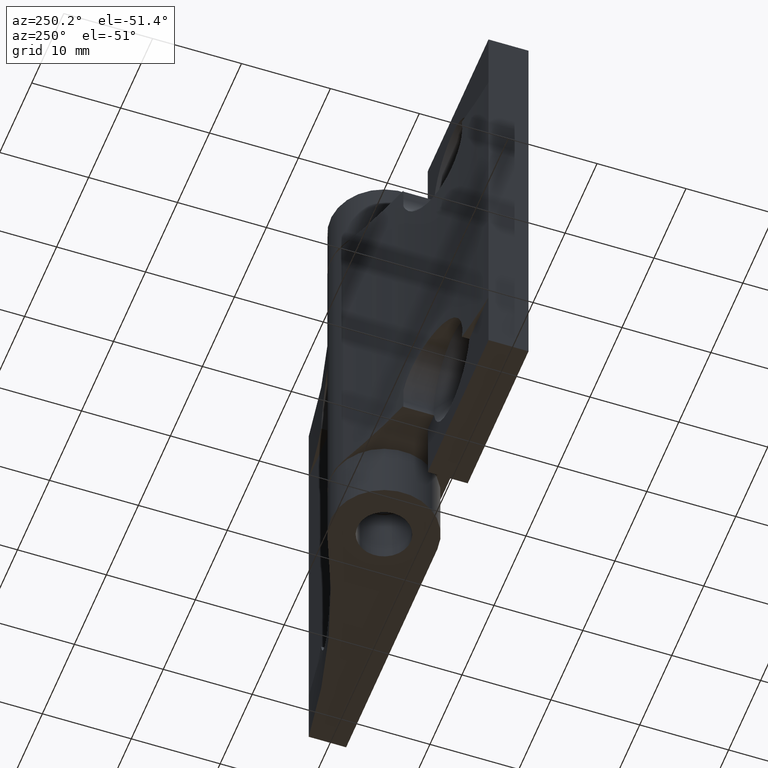
[diagram: clean part render]
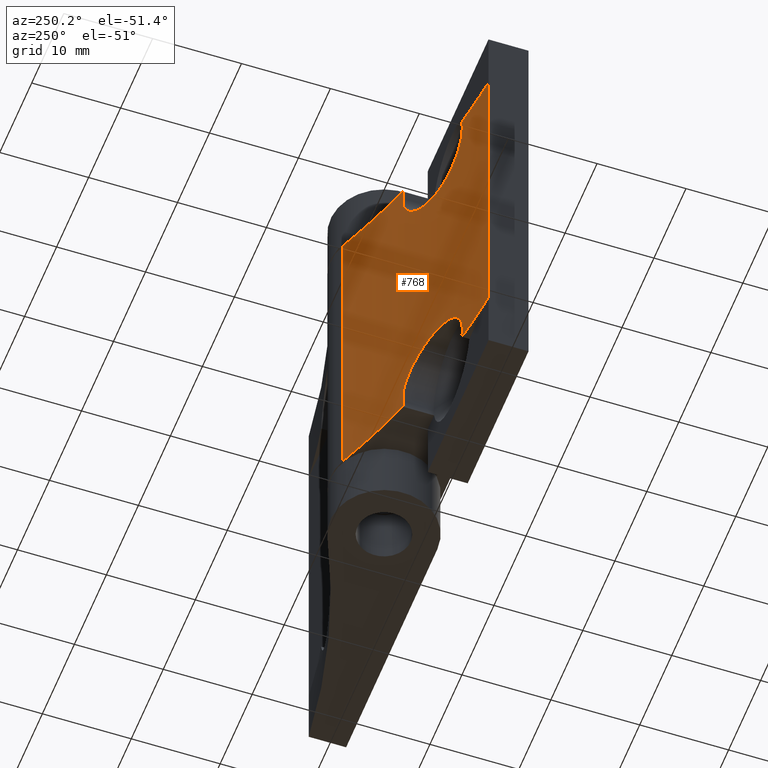
[diagram: same view with one face highlighted and labeled with its STEP entity id]
A machine part, auxiliary view. The second image highlights one B-rep face of the part: STEP entity #768.
In plain terms, the highlighted cylindrical surface (partial cylindrical patch) has radius 85.7362 mm, axis along (-0, -0, -1).
Its self-contained STEP definition (entity closure, byte-faithful):
#106=FACE_OUTER_BOUND('',#166,.T.);
#166=EDGE_LOOP('',(#657,#658,#659,#660,#661,#662,#663,#664,#665,#666));
#209=CIRCLE('',#839,85.7362212547211);
#210=CIRCLE('',#841,85.7362212547211);
#211=CIRCLE('',#843,85.7362212547211);
#216=CIRCLE('',#851,85.7362212547211);
#221=B_SPLINE_CURVE_WITH_KNOTS('',3,(#1244,#1245,#1246,#1247,#1248,#1249,
#1250,#1251,#1252,#1253,#1254,#1255,#1256,#1257,#1258,#1259,#1260,#1261,
#1262,#1263),.UNSPECIFIED.,.F.,.F.,(4,2,2,2,2,2,2,2,2,4),(-1.816147918135,
-1.71323056467301,-1.50267264141732,-1.29211471816164,-1.07591407226793,
-0.859713426374217,-0.640717282606993,-0.421721138839769,-0.210860569419885,
-0.152817432202066),.UNSPECIFIED.);
#222=B_SPLINE_CURVE_WITH_KNOTS('',3,(#1289,#1290,#1291,#1292,#1293,#1294,
#1295,#1296,#1297,#1298,#1299,#1300,#1301,#1302,#1303,#1304,#1305,#1306,
#1307,#1308),.UNSPECIFIED.,.F.,.F.,(4,2,2,2,2,2,2,2,2,4),(0.152817432202066,
0.210860569419885,0.421721138839769,0.640717282606993,0.859713426374216,
1.07591407226793,1.29211471816164,1.50267264141732,1.71323056467301,1.81614791796108),
 .UNSPECIFIED.);
#252=LINE('',#1274,#312);
#254=LINE('',#1281,#314);
#266=LINE('',#1350,#326);
#267=LINE('',#1351,#327);
#312=VECTOR('',#994,2.60740099139237);
#314=VECTOR('',#1000,2.60740099139237);
#326=VECTOR('',#1052,36.5);
#327=VECTOR('',#1053,36.5);
#379=VERTEX_POINT('',#1241);
#380=VERTEX_POINT('',#1243);
#383=VERTEX_POINT('',#1272);
#385=VERTEX_POINT('',#1277);
#386=VERTEX_POINT('',#1279);
#389=VERTEX_POINT('',#1287);
#391=VERTEX_POINT('',#1314);
#395=VERTEX_POINT('',#1326);
#396=VERTEX_POINT('',#1330);
#403=VERTEX_POINT('',#1348);
#463=EDGE_CURVE('',#380,#379,#221,.T.);
#469=EDGE_CURVE('',#379,#383,#252,.T.);
#472=EDGE_CURVE('',#385,#386,#254,.T.);
#476=EDGE_CURVE('',#386,#389,#222,.T.);
#484=EDGE_CURVE('',#391,#380,#209,.T.);
#486=EDGE_CURVE('',#389,#395,#210,.T.);
#487=EDGE_CURVE('',#396,#385,#211,.T.);
#495=EDGE_CURVE('',#383,#403,#216,.T.);
#496=EDGE_CURVE('',#403,#396,#266,.T.);
#497=EDGE_CURVE('',#391,#395,#267,.T.);
#657=ORIENTED_EDGE('',*,*,#469,.T.);
#658=ORIENTED_EDGE('',*,*,#495,.T.);
#659=ORIENTED_EDGE('',*,*,#496,.T.);
#660=ORIENTED_EDGE('',*,*,#487,.T.);
#661=ORIENTED_EDGE('',*,*,#472,.T.);
#662=ORIENTED_EDGE('',*,*,#476,.T.);
#663=ORIENTED_EDGE('',*,*,#486,.T.);
#664=ORIENTED_EDGE('',*,*,#497,.F.);
#665=ORIENTED_EDGE('',*,*,#484,.T.);
#666=ORIENTED_EDGE('',*,*,#463,.T.);
#733=CYLINDRICAL_SURFACE('',#850,85.7362212547211);
#768=ADVANCED_FACE('',(#106),#733,.F.);
#839=AXIS2_PLACEMENT_3D('',#1324,#1022,#1023);
#841=AXIS2_PLACEMENT_3D('',#1328,#1027,#1028);
#843=AXIS2_PLACEMENT_3D('',#1331,#1031,#1032);
#850=AXIS2_PLACEMENT_3D('',#1347,#1048,#1049);
#851=AXIS2_PLACEMENT_3D('',#1349,#1050,#1051);
#994=DIRECTION('',(0.,0.,-1.));
#1000=DIRECTION('',(0.,0.,-1.));
#1022=DIRECTION('center_axis',(0.,0.,-1.));
#1023=DIRECTION('ref_axis',(0.407472637184468,0.913217416580485,0.));
#1027=DIRECTION('center_axis',(0.,0.,1.));
#1028=DIRECTION('ref_axis',(0.407472637184468,0.913217416580485,0.));
#1031=DIRECTION('center_axis',(0.,0.,1.));
#1032=DIRECTION('ref_axis',(0.407472637184468,0.913217416580485,0.));
#1048=DIRECTION('center_axis',(0.,0.,1.));
#1049=DIRECTION('ref_axis',(0.407472637184468,0.913217416580485,0.));
#1050=DIRECTION('center_axis',(0.,0.,-1.));
#1051=DIRECTION('ref_axis',(0.407472637184468,0.913217416580485,0.));
#1052=DIRECTION('',(0.,0.,1.));
#1053=DIRECTION('',(0.,0.,1.));
#1241=CARTESIAN_POINT('',(-2.62908004699828,5.75,-15.6425990086076));
#1243=CARTESIAN_POINT('',(8.25068177592516,3.08990002770191,-18.25));
#1244=CARTESIAN_POINT('Ctrl Pts',(8.25068177592514,3.08990002770192,-18.25));
#1245=CARTESIAN_POINT('Ctrl Pts',(8.31798554527689,3.07803964216945,-17.897412745215));
#1246=CARTESIAN_POINT('Ctrl Pts',(8.34999999999954,3.0724582138922,-17.5430578448733));
#1247=CARTESIAN_POINT('Ctrl Pts',(8.34999999999954,3.0724582138922,-16.4981402558144));
#1248=CARTESIAN_POINT('Ctrl Pts',(8.2098916233519,3.09660655195657,-15.7501873565984));
#1249=CARTESIAN_POINT('Ctrl Pts',(7.64271052229979,3.1988051208486,-14.3762159364311));
#1250=CARTESIAN_POINT('Ctrl Pts',(7.21569716912051,3.27736443799418,-13.750210821417));
#1251=CARTESIAN_POINT('Ctrl Pts',(6.22326786760188,3.47082043017487,-12.7495878277313));
#1252=CARTESIAN_POINT('Ctrl Pts',(5.58733745207435,3.59980202737677,-12.3140165811875));
#1253=CARTESIAN_POINT('Ctrl Pts',(4.20061678628312,3.90166363582901,-11.7393197802407));
#1254=CARTESIAN_POINT('Ctrl Pts',(3.45001242607601,4.07502757744522,-11.6));
#1255=CARTESIAN_POINT('Ctrl Pts',(2.04093633709425,4.41985696396317,-11.6));
#1256=CARTESIAN_POINT('Ctrl Pts',(1.28609863654967,4.61515341953227,-11.7425779161622));
#1257=CARTESIAN_POINT('Ctrl Pts',(-0.102876144704987,4.99359846162697,-12.3227507322615));
#1258=CARTESIAN_POINT('Ctrl Pts',(-0.737146121482898,5.17626727935396,-12.7603403145924));
#1259=CARTESIAN_POINT('Ctrl Pts',(-1.72176902042487,5.46816526272297,-13.7595343906613));
#1260=CARTESIAN_POINT('Ctrl Pts',(-2.1452311429495,5.59862552192761,-14.3813757328713));
#1261=CARTESIAN_POINT('Ctrl Pts',(-2.50500125455161,5.71097827764648,-15.2541121155036));
#1262=CARTESIAN_POINT('Ctrl Pts',(-2.5724690526171,5.73216759296342,-15.4470712851764));
#1263=CARTESIAN_POINT('Ctrl Pts',(-2.62908004699828,5.74999999999998,-15.6425990086076));
#1272=CARTESIAN_POINT('',(-2.62908004699831,5.75,-18.25));
#1274=CARTESIAN_POINT('',(-2.62908004699831,5.75,0.));
#1277=CARTESIAN_POINT('',(-2.62908004699831,5.75,18.25));
#1279=CARTESIAN_POINT('',(-2.62908004699828,5.75,15.6425990086076));
#1281=CARTESIAN_POINT('',(-2.62908004699831,5.75,0.));
#1287=CARTESIAN_POINT('',(8.25068177592516,3.08990002770191,18.25));
#1289=CARTESIAN_POINT('Ctrl Pts',(-2.62908004699828,5.74999999999998,15.6425990086076));
#1290=CARTESIAN_POINT('Ctrl Pts',(-2.5724690526171,5.73216759296342,15.4470712851764));
#1291=CARTESIAN_POINT('Ctrl Pts',(-2.50500125455161,5.71097827764648,15.2541121155036));
#1292=CARTESIAN_POINT('Ctrl Pts',(-2.1452311429495,5.59862552192761,14.3813757328713));
#1293=CARTESIAN_POINT('Ctrl Pts',(-1.72176902042488,5.46816526272297,13.7595343906613));
#1294=CARTESIAN_POINT('Ctrl Pts',(-0.737146121482898,5.17626727935396,12.7603403145924));
#1295=CARTESIAN_POINT('Ctrl Pts',(-0.102876144704989,4.99359846162697,12.3227507322615));
#1296=CARTESIAN_POINT('Ctrl Pts',(1.28609863654967,4.61515341953227,11.7425779161622));
#1297=CARTESIAN_POINT('Ctrl Pts',(2.04093633709425,4.41985696396317,11.6));
#1298=CARTESIAN_POINT('Ctrl Pts',(3.45001242607601,4.07502757744522,11.6));
#1299=CARTESIAN_POINT('Ctrl Pts',(4.20061678628311,3.90166363582901,11.7393197802407));
#1300=CARTESIAN_POINT('Ctrl Pts',(5.58733745207435,3.59980202737677,12.3140165811875));
#1301=CARTESIAN_POINT('Ctrl Pts',(6.22326786760188,3.47082043017487,12.7495878277313));
#1302=CARTESIAN_POINT('Ctrl Pts',(7.2156971691205,3.27736443799418,13.750210821417));
#1303=CARTESIAN_POINT('Ctrl Pts',(7.64271052229979,3.1988051208486,14.3762159364311));
#1304=CARTESIAN_POINT('Ctrl Pts',(8.2098916233519,3.09660655195657,15.7501873565984));
#1305=CARTESIAN_POINT('Ctrl Pts',(8.34999999999954,3.0724582138922,16.4981402558144));
#1306=CARTESIAN_POINT('Ctrl Pts',(8.34999999999954,3.0724582138922,17.5430578442936));
#1307=CARTESIAN_POINT('Ctrl Pts',(8.31798554527955,3.07803964216898,17.8974127452011));
#1308=CARTESIAN_POINT('Ctrl Pts',(8.25068177592514,3.08990002770192,18.25));
#1314=CARTESIAN_POINT('',(14.2499999999995,2.25,-18.25));
#1324=CARTESIAN_POINT('Origin',(23.1299999999995,87.5251149810922,-18.25));
#1326=CARTESIAN_POINT('',(14.2499999999995,2.25,18.25));
#1328=CARTESIAN_POINT('Origin',(23.1299999999995,87.5251149810922,18.25));
#1330=CARTESIAN_POINT('',(-11.8051641768927,9.22930449948293,18.25));
#1331=CARTESIAN_POINT('Origin',(23.1299999999995,87.5251149810922,18.25));
#1347=CARTESIAN_POINT('Origin',(23.1299999999995,87.5251149810922,0.));
#1348=CARTESIAN_POINT('',(-11.8051641768927,9.22930449948293,-18.25));
#1349=CARTESIAN_POINT('Origin',(23.1299999999995,87.5251149810922,-18.25));
#1350=CARTESIAN_POINT('',(-11.8051641768927,9.22930449948293,0.));
#1351=CARTESIAN_POINT('',(14.2499999999995,2.25,0.));